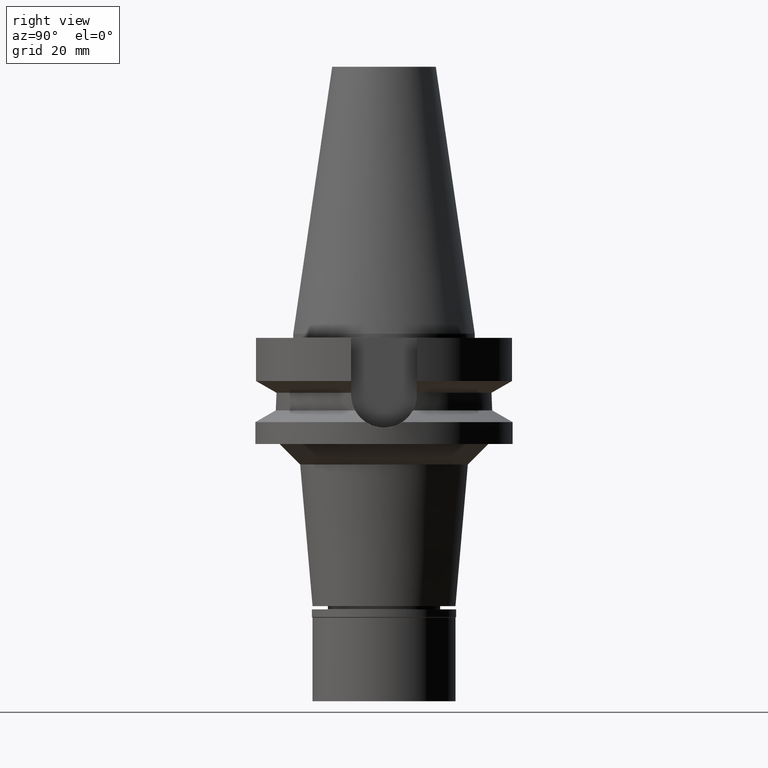
[diagram: clean part render]
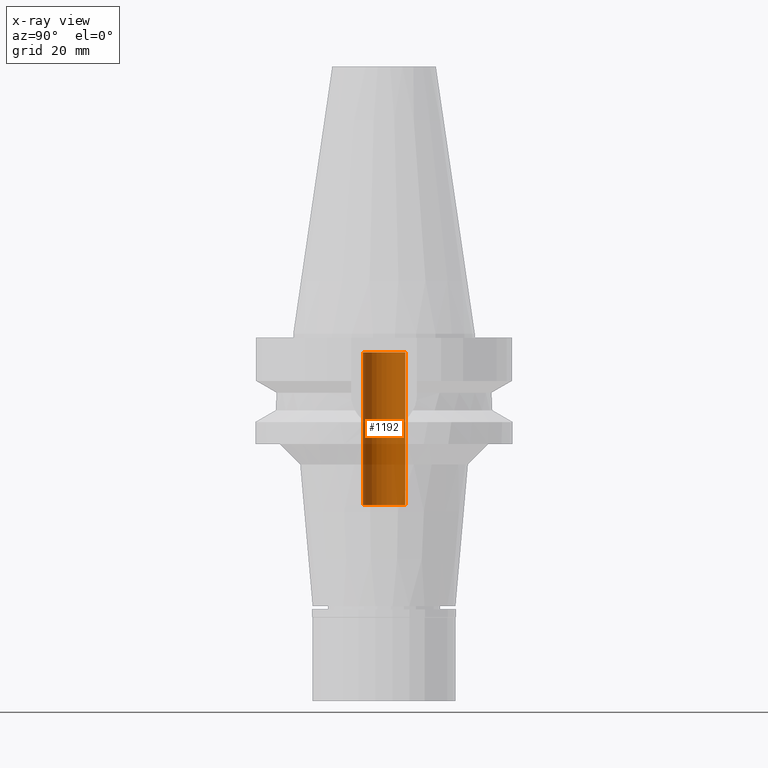
[diagram: x-ray — body ghosted, one internal face saturated and labeled with its STEP entity id]
A machine part, right view, then the same camera in x-ray: the body is ghosted and one INTERNAL B-rep face — a face not visible from any outside direction — is saturated and labeled: STEP entity #1192.
In plain terms, the highlighted cylindrical surface (edge-blend (fillet) strip) has radius 5.2 mm, axis along (0, 0, -1).
Its self-contained STEP definition (entity closure, byte-faithful):
#20 = CARTESIAN_POINT ( 'NONE',  ( 0.0000000000000000000, 2.116618295306000150E-14, 72.83499999999999375 ) ) ;
#31 = VECTOR ( 'NONE', #2282, 1000.000000000000000 ) ;
#32 = DIRECTION ( 'NONE',  ( 0.0000000000000000000, -1.000000000000000000, 0.0000000000000000000 ) ) ;
#254 = CYLINDRICAL_SURFACE ( 'NONE', #1204, 5.200000000000000178 ) ;
#321 = LINE ( 'NONE', #1305, #31 ) ;
#332 = CIRCLE ( 'NONE', #2128, 5.200000000000000178 ) ;
#338 = DIRECTION ( 'NONE',  ( 0.0000000000000000000, -1.000000000000000000, 0.0000000000000000000 ) ) ;
#461 = ORIENTED_EDGE ( 'NONE', *, *, #2135, .T. ) ;
#563 = DIRECTION ( 'NONE',  ( 0.0000000000000000000, 0.0000000000000000000, 1.000000000000000000 ) ) ;
#762 = DIRECTION ( 'NONE',  ( 0.0000000000000000000, 0.0000000000000000000, -1.000000000000000000 ) ) ;
#831 = ORIENTED_EDGE ( 'NONE', *, *, #2767, .T. ) ;
#881 = CARTESIAN_POINT ( 'NONE',  ( 0.0000000000000000000, 5.200000000000000178, -42.00000000000000000 ) ) ;
#928 = VERTEX_POINT ( 'NONE', #1420 ) ;
#989 = DIRECTION ( 'NONE',  ( 0.0000000000000000000, 0.0000000000000000000, -1.000000000000000000 ) ) ;
#1077 = VERTEX_POINT ( 'NONE', #2466 ) ;
#1096 = CARTESIAN_POINT ( 'NONE',  ( 0.0000000000000000000, 5.200000000000000178, -42.00000000000000000 ) ) ;
#1192 = ADVANCED_FACE ( 'NONE', ( #2452 ), #254, .F. ) ;
#1204 = AXIS2_PLACEMENT_3D ( 'NONE', #20, #989, #338 ) ;
#1305 = CARTESIAN_POINT ( 'NONE',  ( 0.0000000000000000000, -5.200000000000000178, -42.00000000000000000 ) ) ;
#1350 = VERTEX_POINT ( 'NONE', #881 ) ;
#1387 = LINE ( 'NONE', #1096, #2075 ) ;
#1420 = CARTESIAN_POINT ( 'NONE',  ( 0.0000000000000000000, -5.200000000000000178, -4.599999999999999645 ) ) ;
#1600 = CARTESIAN_POINT ( 'NONE',  ( 0.0000000000000000000, 2.116618295306000150E-14, -4.599999999999999645 ) ) ;
#1723 = EDGE_CURVE ( 'NONE', #1077, #928, #332, .T. ) ;
#1739 = ORIENTED_EDGE ( 'NONE', *, *, #2667, .F. ) ;
#1845 = DIRECTION ( 'NONE',  ( 0.0000000000000000000, 0.0000000000000000000, 1.000000000000000000 ) ) ;
#2057 = ORIENTED_EDGE ( 'NONE', *, *, #1723, .T. ) ;
#2075 = VECTOR ( 'NONE', #1845, 1000.000000000000000 ) ;
#2128 = AXIS2_PLACEMENT_3D ( 'NONE', #1600, #563, #2342 ) ;
#2135 = EDGE_CURVE ( 'NONE', #2949, #1350, #2642, .T. ) ;
#2137 = CARTESIAN_POINT ( 'NONE',  ( 0.0000000000000000000, -5.200000000000000178, -42.00000000000000000 ) ) ;
#2282 = DIRECTION ( 'NONE',  ( 0.0000000000000000000, 0.0000000000000000000, 1.000000000000000000 ) ) ;
#2342 = DIRECTION ( 'NONE',  ( 0.0000000000000000000, 1.000000000000000000, 0.0000000000000000000 ) ) ;
#2452 = FACE_OUTER_BOUND ( 'NONE', #3108, .T. ) ;
#2466 = CARTESIAN_POINT ( 'NONE',  ( 0.0000000000000000000, 5.200000000000000178, -4.599999999999999645 ) ) ;
#2521 = CARTESIAN_POINT ( 'NONE',  ( 0.0000000000000000000, 2.116618295306000150E-14, -42.00000000000000000 ) ) ;
#2642 = CIRCLE ( 'NONE', #3138, 5.200000000000000178 ) ;
#2667 = EDGE_CURVE ( 'NONE', #2949, #928, #321, .T. ) ;
#2767 = EDGE_CURVE ( 'NONE', #1350, #1077, #1387, .T. ) ;
#2949 = VERTEX_POINT ( 'NONE', #2137 ) ;
#3108 = EDGE_LOOP ( 'NONE', ( #2057, #1739, #461, #831 ) ) ;
#3138 = AXIS2_PLACEMENT_3D ( 'NONE', #2521, #762, #32 ) ;